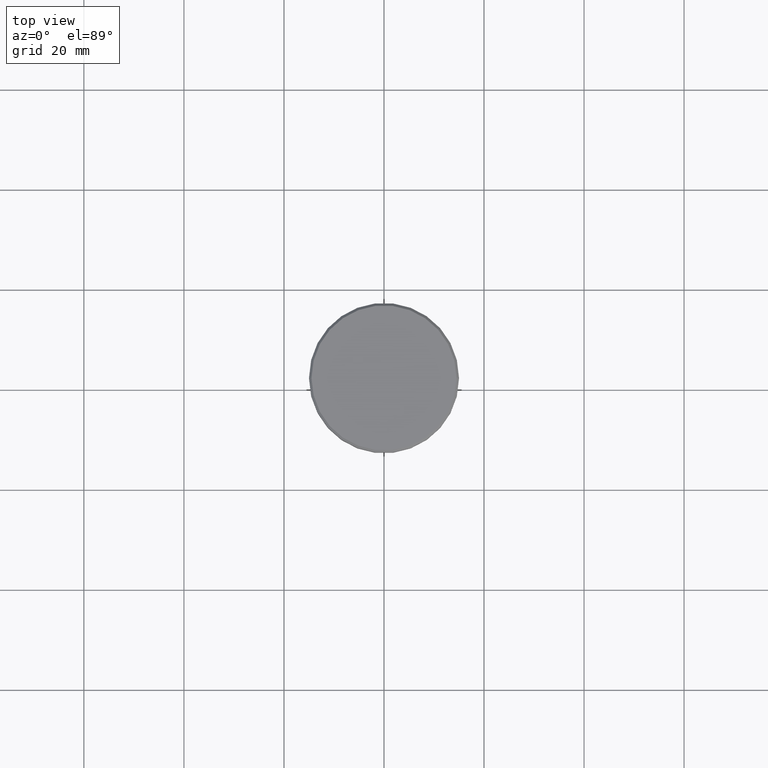
[diagram: clean part render]
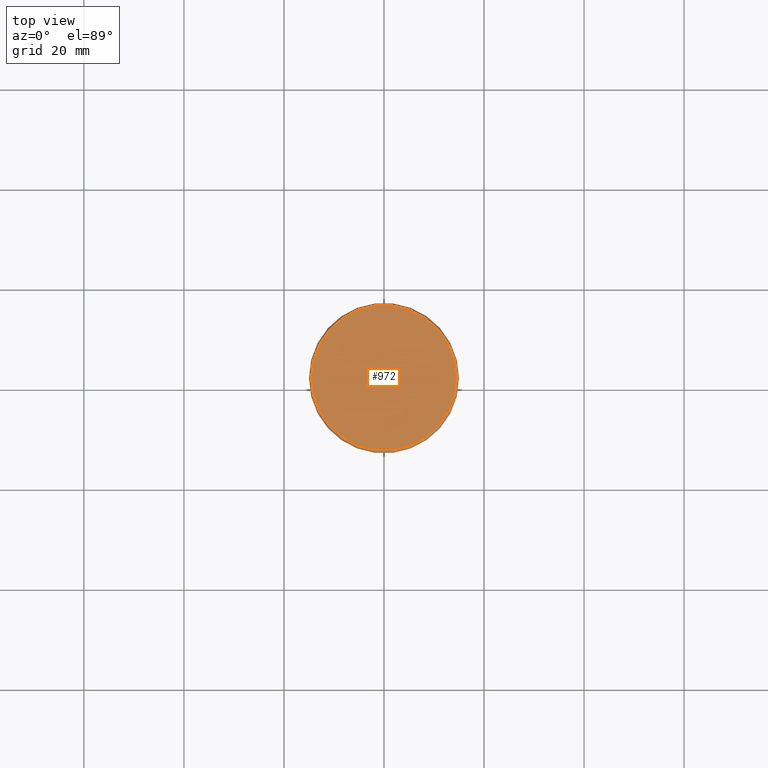
[diagram: same view with one face highlighted and labeled with its STEP entity id]
A machine part, top view. The second image highlights one B-rep face of the part: STEP entity #972.
In plain terms, the highlighted planar face has unit normal (0, -0, 1).
Its self-contained STEP definition (entity closure, byte-faithful):
#40 = ORIENTED_EDGE ( 'NONE', *, *, #914, .T. ) ;
#194 = DIRECTION ( 'NONE',  ( 0.000000000000000000, -0.000000000000000000, 1.000000000000000000 ) ) ;
#276 = EDGE_CURVE ( 'NONE', #948, #910, #997, .T. ) ;
#280 = CARTESIAN_POINT ( 'NONE',  ( 0.000000000000000000, 0.000000000000000000, 0.000000000000000000 ) ) ;
#305 = AXIS2_PLACEMENT_3D ( 'NONE', #350, #1075, #800 ) ;
#329 = ORIENTED_EDGE ( 'NONE', *, *, #276, .T. ) ;
#350 = CARTESIAN_POINT ( 'NONE',  ( 0.000000000000000000, 0.000000000000000000, 0.000000000000000000 ) ) ;
#361 = DIRECTION ( 'NONE',  ( -0.000000000000000000, -0.000000000000000000, 1.000000000000000000 ) ) ;
#367 = PLANE ( 'NONE',  #405 ) ;
#405 = AXIS2_PLACEMENT_3D ( 'NONE', #280, #194, #554 ) ;
#457 = DIRECTION ( 'NONE',  ( 1.000000000000000000, 0.000000000000000000, 0.000000000000000000 ) ) ;
#554 = DIRECTION ( 'NONE',  ( 1.000000000000000000, 0.000000000000000000, 0.000000000000000000 ) ) ;
#638 = FACE_OUTER_BOUND ( 'NONE', #1160, .T. ) ;
#755 = CARTESIAN_POINT ( 'NONE',  ( -14.50000000000001066, 0.000000000000000000, 0.000000000000000000 ) ) ;
#800 = DIRECTION ( 'NONE',  ( 1.000000000000000000, 0.000000000000000000, 0.000000000000000000 ) ) ;
#825 = CARTESIAN_POINT ( 'NONE',  ( 14.50000000000001066, 1.806354028742346591E-15, 0.000000000000000000 ) ) ;
#870 = CIRCLE ( 'NONE', #986, 14.50000000000001066 ) ;
#910 = VERTEX_POINT ( 'NONE', #825 ) ;
#914 = EDGE_CURVE ( 'NONE', #910, #948, #870, .T. ) ;
#948 = VERTEX_POINT ( 'NONE', #755 ) ;
#972 = ADVANCED_FACE ( 'NONE', ( #638 ), #367, .T. ) ;
#986 = AXIS2_PLACEMENT_3D ( 'NONE', #1103, #361, #457 ) ;
#997 = CIRCLE ( 'NONE', #305, 14.50000000000001066 ) ;
#1075 = DIRECTION ( 'NONE',  ( -0.000000000000000000, -0.000000000000000000, 1.000000000000000000 ) ) ;
#1103 = CARTESIAN_POINT ( 'NONE',  ( 0.000000000000000000, 0.000000000000000000, 0.000000000000000000 ) ) ;
#1160 = EDGE_LOOP ( 'NONE', ( #329, #40 ) ) ;